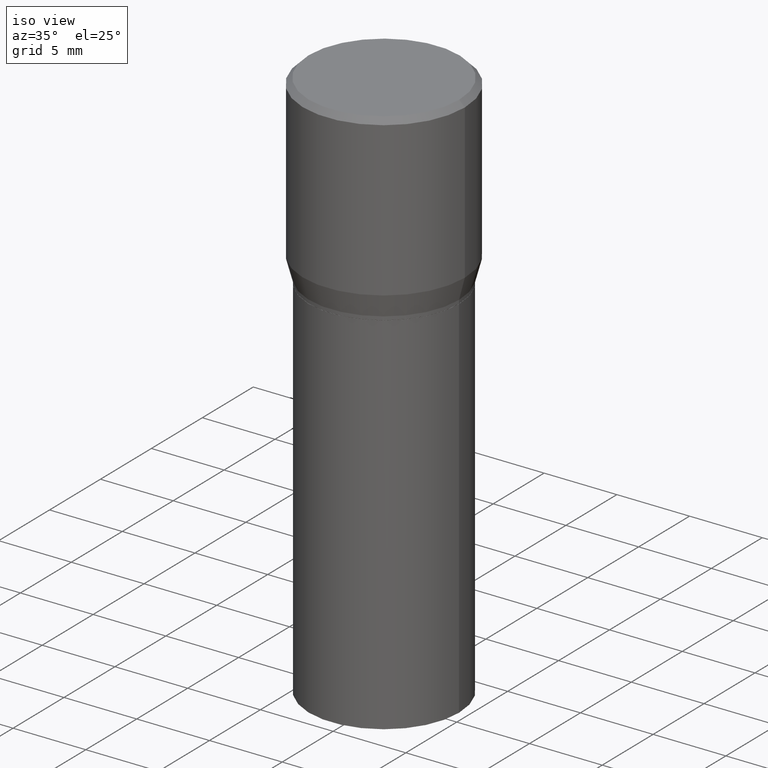
[diagram: clean part render]
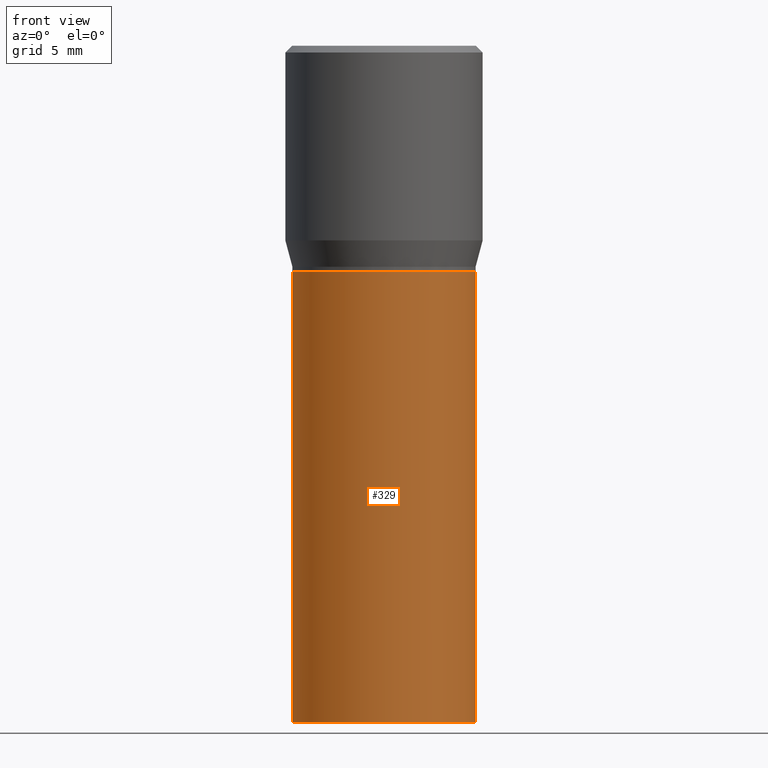
[diagram: tour spotlight — one face highlighted and labeled with its STEP entity id]
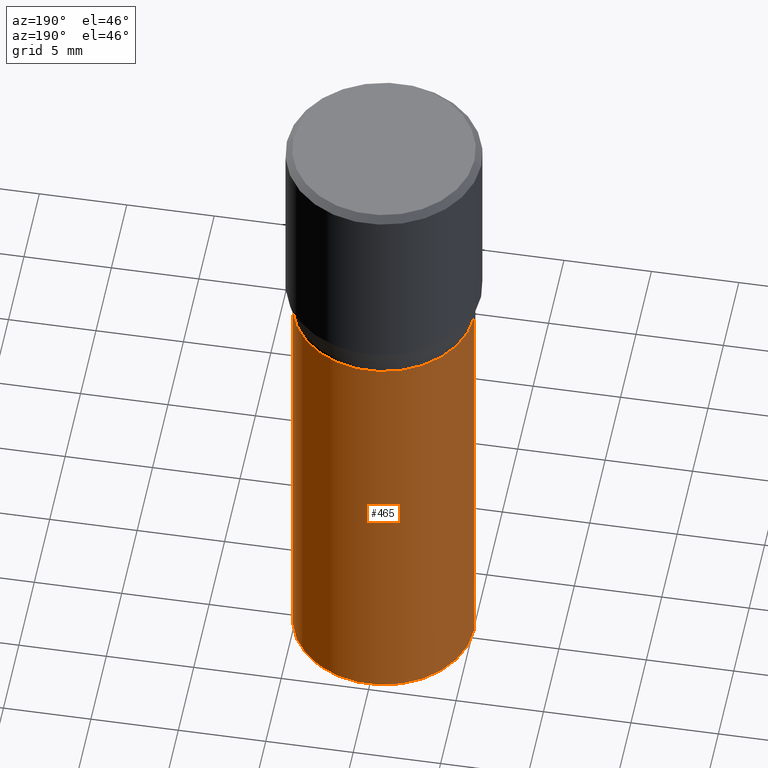
[diagram: tour spotlight — one face highlighted and labeled with its STEP entity id]
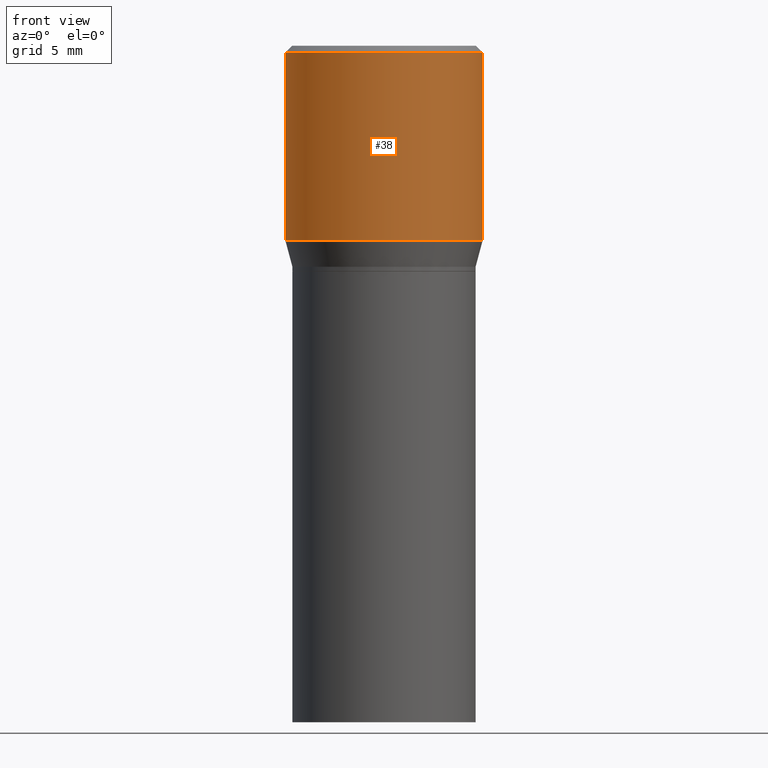
[diagram: tour spotlight — one face highlighted and labeled with its STEP entity id]
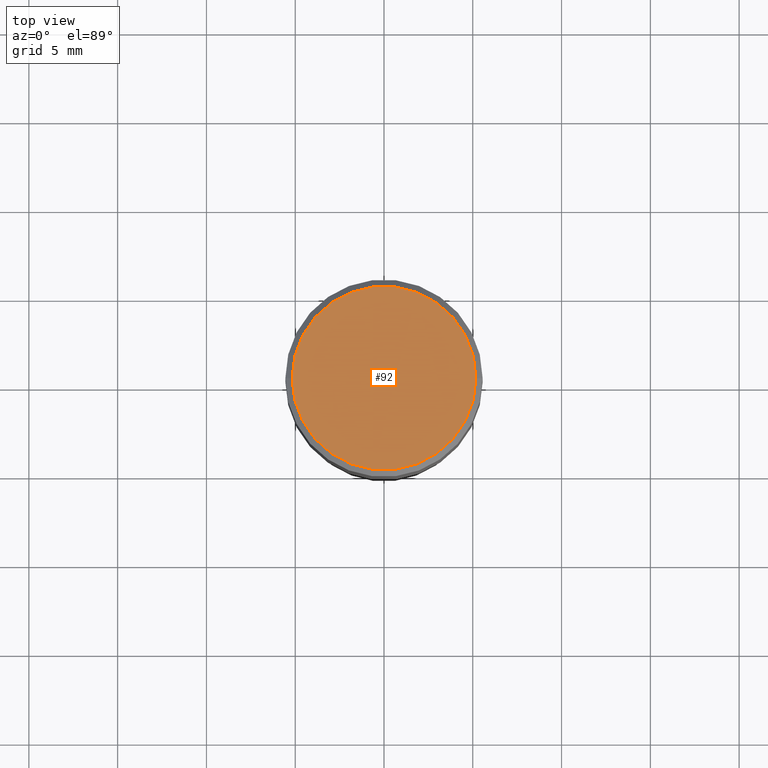
[diagram: tour spotlight — one face highlighted and labeled with its STEP entity id]
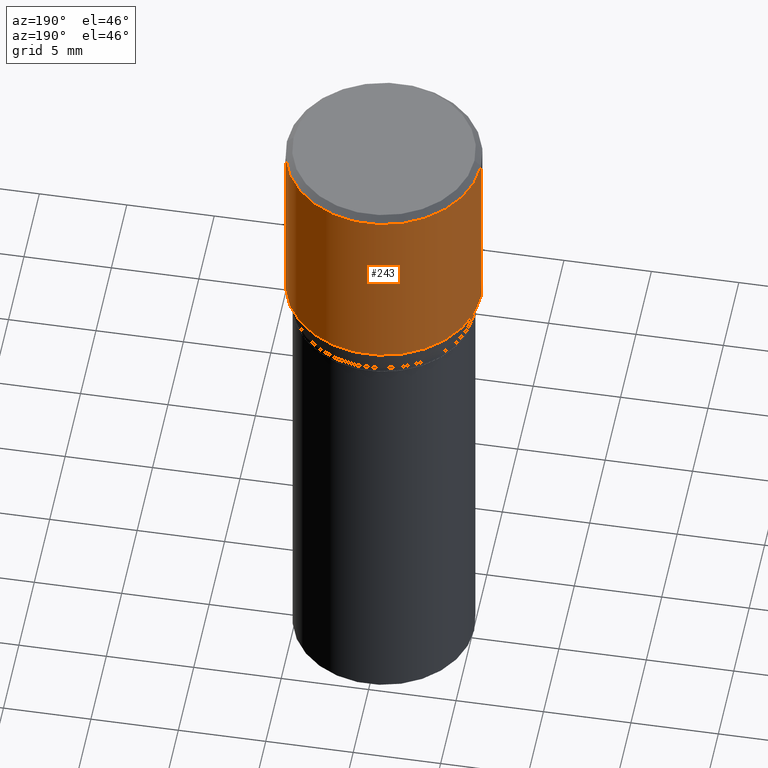
[diagram: tour spotlight — one face highlighted and labeled with its STEP entity id]
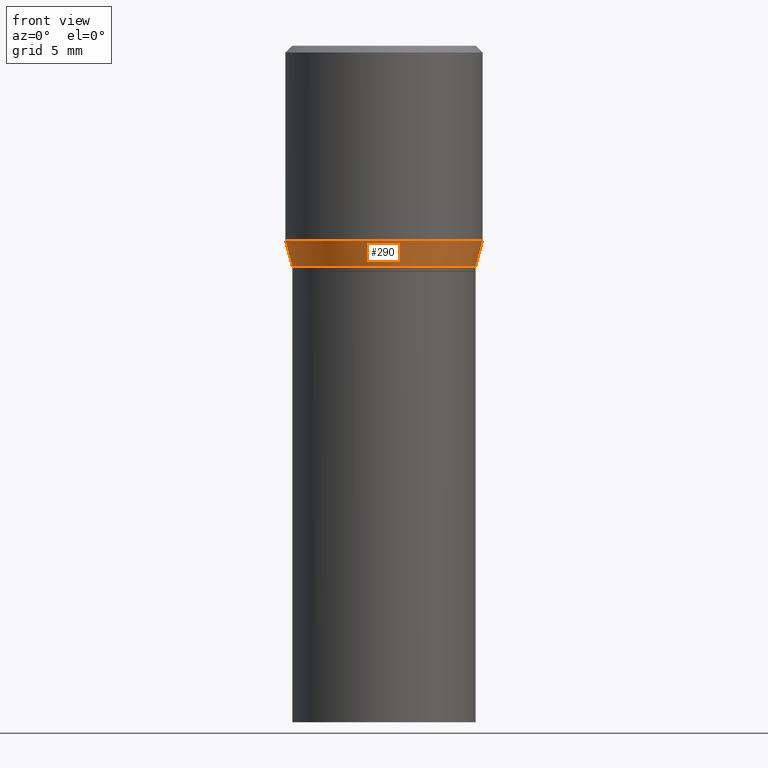
[diagram: tour spotlight — one face highlighted and labeled with its STEP entity id]
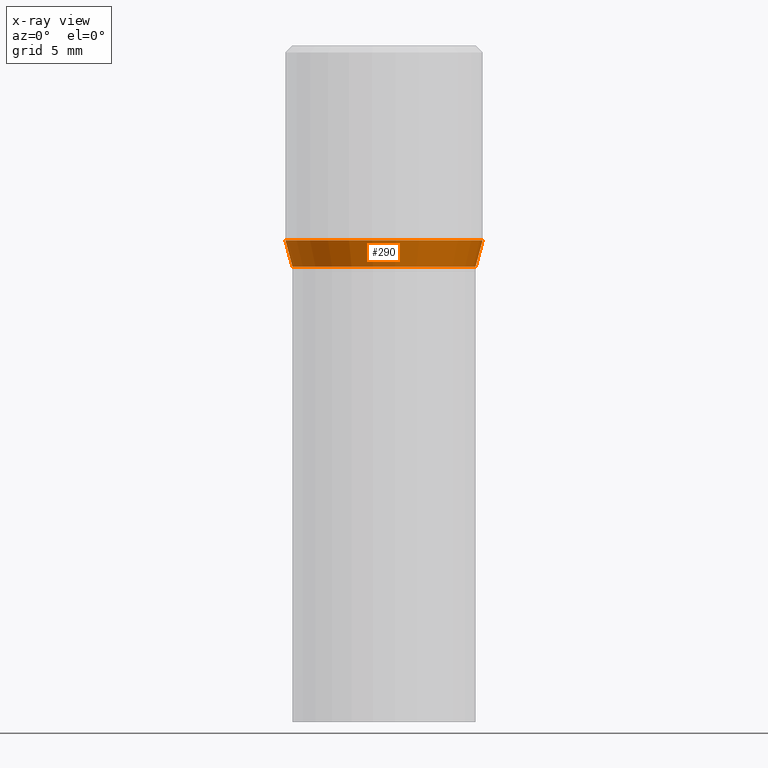
[diagram: x-ray of the same camera — body ghosted, this tour face saturated]
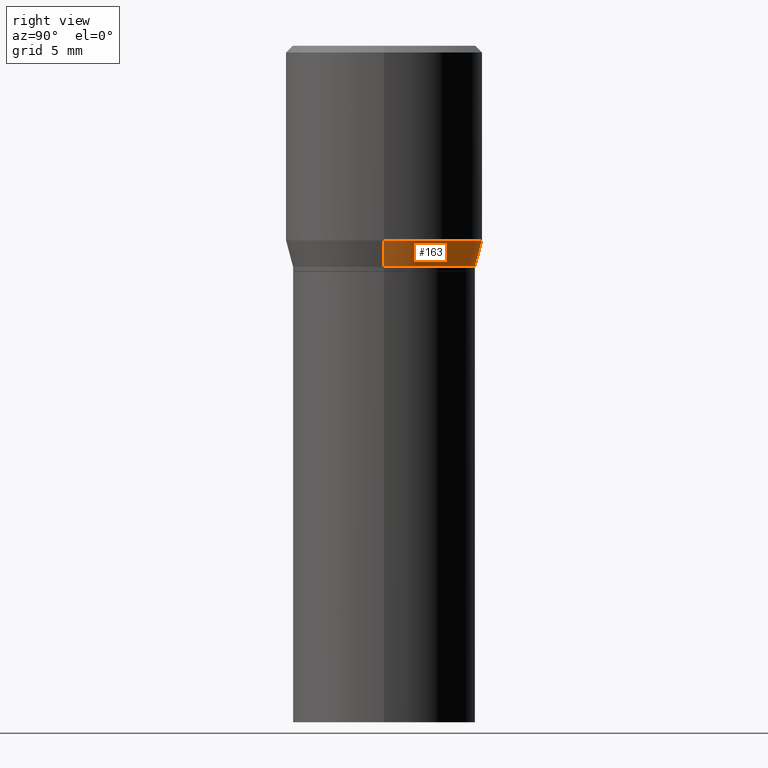
[diagram: tour spotlight — one face highlighted and labeled with its STEP entity id]
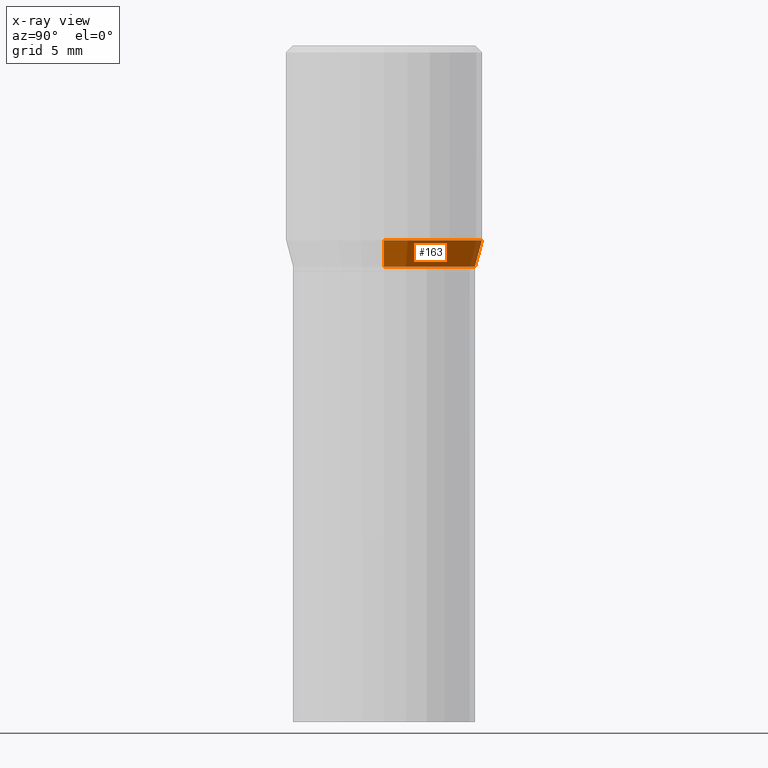
[diagram: x-ray of the same camera — body ghosted, this tour face saturated]
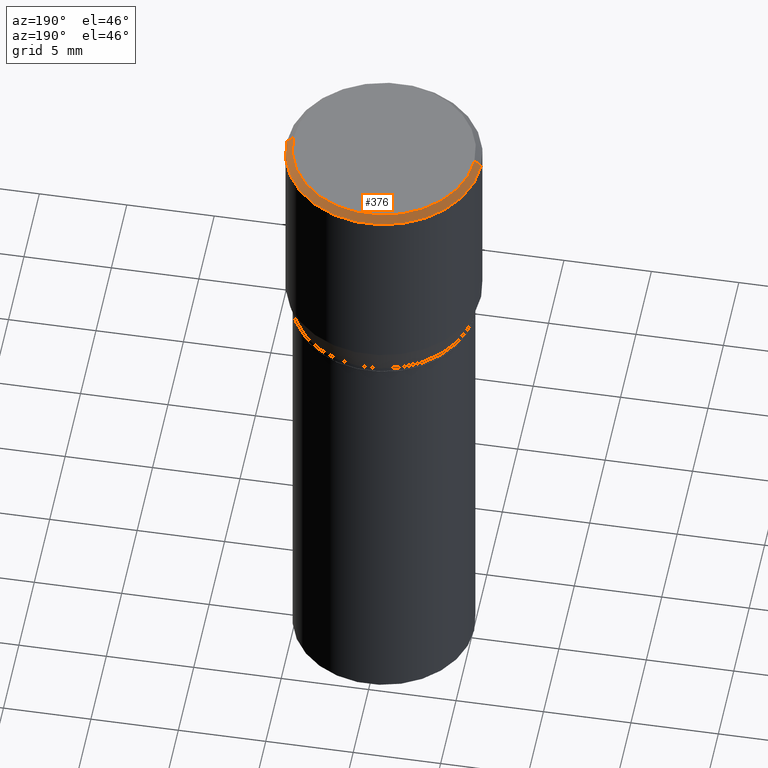
[diagram: tour spotlight — one face highlighted and labeled with its STEP entity id]
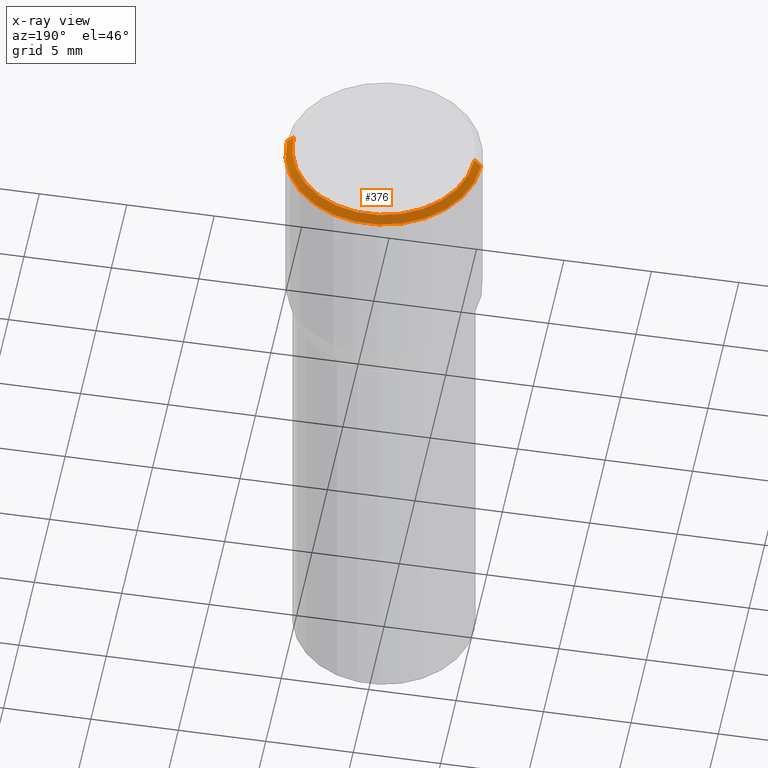
[diagram: x-ray of the same camera — body ghosted, this tour face saturated]
A machine part: a face-by-face anatomy tour. The part has 16 B-rep faces; the first image is the clean iso view, then the 8 largest visible faces are spotlighted one at a time (largest first), each with its STEP entity span.

Face 1 — front view, entity #329. In plain terms, the highlighted cylindrical surface (partial cylindrical patch) has radius 5.1587 mm, axis along (-0, 0, 1).
Definition (entity closure, byte-faithful):
#15 = CIRCLE ( 'NONE', #332, 0.2031000000000000028 ) ;
#35 = AXIS2_PLACEMENT_3D ( 'NONE', #206, #203, #275 ) ;
#54 = CARTESIAN_POINT ( 'NONE',  ( 0.2031000000000000028, -3.163980389259653764E-15, -0.5000000000000001110 ) ) ;
#61 = VERTEX_POINT ( 'NONE', #193 ) ;
#64 = VECTOR ( 'NONE', #448, 39.37007874015748143 ) ;
#65 = FACE_OUTER_BOUND ( 'NONE', #200, .T. ) ;
#81 = CARTESIAN_POINT ( 'NONE',  ( -0.2031000000000000028, 1.443112296328763497E-15, -9.990357168307714203E-30 ) ) ;
#87 = DIRECTION ( 'NONE',  ( -2.445468806185136877E-29, 3.491481338843145188E-15, 1.000000000000000000 ) ) ;
#88 = ORIENTED_EDGE ( 'NONE', *, *, #245, .T. ) ;
#94 = CARTESIAN_POINT ( 'NONE',  ( 0.000000000000000000, 0.000000000000000000, 0.000000000000000000 ) ) ;
#99 = EDGE_CURVE ( 'NONE', #61, #436, #157, .T. ) ;
#102 = CARTESIAN_POINT ( 'NONE',  ( 0.2031000000000000028, -1.418239719838080775E-15, 9.903515031641546145E-30 ) ) ;
#115 = VECTOR ( 'NONE', #87, 39.37007874015748143 ) ;
#142 = CARTESIAN_POINT ( 'NONE',  ( -0.2031000000000000028, -2.048369042514382480E-15, -0.5000000000000001110 ) ) ;
#151 = VERTEX_POINT ( 'NONE', #54 ) ;
#157 = LINE ( 'NONE', #81, #115 ) ;
#177 = DIRECTION ( 'NONE',  ( 1.000000000000000000, -6.982962677686265922E-15, 0.000000000000000000 ) ) ;
#193 = CARTESIAN_POINT ( 'NONE',  ( -0.2031000000000000028, -2.048369042514382480E-15, -1.500000000000000222 ) ) ;
#195 = DIRECTION ( 'NONE',  ( 1.000000000000000000, -6.982962677686266711E-15, 4.876176775795935793E-29 ) ) ;
#196 = CARTESIAN_POINT ( 'NONE',  ( 0.2031000000000000028, -6.655461728102798952E-15, -1.500000000000000222 ) ) ;
#199 = CIRCLE ( 'NONE', #35, 0.2031000000000000028 ) ;
#200 = EDGE_LOOP ( 'NONE', ( #337, #324, #88, #284 ) ) ;
#203 = DIRECTION ( 'NONE',  ( -2.445468806185136597E-29, 3.491481338843145583E-15, 1.000000000000000000 ) ) ;
#206 = CARTESIAN_POINT ( 'NONE',  ( 3.668203209277704895E-29, -5.237222008264718177E-15, -1.500000000000000222 ) ) ;
#245 = EDGE_CURVE ( 'NONE', #331, #151, #336, .T. ) ;
#273 = DIRECTION ( 'NONE',  ( -2.445468806185136597E-29, 3.491481338843145583E-15, 1.000000000000000000 ) ) ;
#275 = DIRECTION ( 'NONE',  ( 1.000000000000000000, -6.982962677686264344E-15, 0.000000000000000000 ) ) ;
#284 = ORIENTED_EDGE ( 'NONE', *, *, #461, .F. ) ;
#288 = AXIS2_PLACEMENT_3D ( 'NONE', #94, #273, #195 ) ;
#324 = ORIENTED_EDGE ( 'NONE', *, *, #430, .T. ) ;
#329 = ADVANCED_FACE ( 'NONE', ( #65 ), #344, .T. ) ;
#331 = VERTEX_POINT ( 'NONE', #196 ) ;
#332 = AXIS2_PLACEMENT_3D ( 'NONE', #351, #357, #177 ) ;
#336 = LINE ( 'NONE', #102, #64 ) ;
#337 = ORIENTED_EDGE ( 'NONE', *, *, #99, .F. ) ;
#344 = CYLINDRICAL_SURFACE ( 'NONE', #288, 0.2031000000000000028 ) ;
#351 = CARTESIAN_POINT ( 'NONE',  ( 1.222734403092568719E-29, -1.745740669421573186E-15, -0.5000000000000001110 ) ) ;
#357 = DIRECTION ( 'NONE',  ( -2.445468806185136597E-29, 3.491481338843145583E-15, 1.000000000000000000 ) ) ;
#430 = EDGE_CURVE ( 'NONE', #61, #331, #199, .T. ) ;
#436 = VERTEX_POINT ( 'NONE', #142 ) ;
#448 = DIRECTION ( 'NONE',  ( -2.445468806185136877E-29, 3.491481338843145188E-15, 1.000000000000000000 ) ) ;
#461 = EDGE_CURVE ( 'NONE', #436, #151, #15, .T. ) ;

Face 2 — auxiliary view, entity #465. In plain terms, the highlighted cylindrical surface (partial cylindrical patch) has radius 5.1587 mm, axis along (-0, 0, 1).
Definition (entity closure, byte-faithful):
#33 = EDGE_CURVE ( 'NONE', #151, #436, #355, .T. ) ;
#45 = ORIENTED_EDGE ( 'NONE', *, *, #99, .T. ) ;
#54 = CARTESIAN_POINT ( 'NONE',  ( 0.2031000000000000028, -3.163980389259653764E-15, -0.5000000000000001110 ) ) ;
#61 = VERTEX_POINT ( 'NONE', #193 ) ;
#64 = VECTOR ( 'NONE', #448, 39.37007874015748143 ) ;
#71 = DIRECTION ( 'NONE',  ( -2.445468806185136597E-29, 3.491481338843145583E-15, 1.000000000000000000 ) ) ;
#81 = CARTESIAN_POINT ( 'NONE',  ( -0.2031000000000000028, 1.443112296328763497E-15, -9.990357168307714203E-30 ) ) ;
#87 = DIRECTION ( 'NONE',  ( -2.445468806185136877E-29, 3.491481338843145188E-15, 1.000000000000000000 ) ) ;
#95 = DIRECTION ( 'NONE',  ( -2.445468806185136597E-29, 3.491481338843145583E-15, 1.000000000000000000 ) ) ;
#99 = EDGE_CURVE ( 'NONE', #61, #436, #157, .T. ) ;
#102 = CARTESIAN_POINT ( 'NONE',  ( 0.2031000000000000028, -1.418239719838080775E-15, 9.903515031641546145E-30 ) ) ;
#115 = VECTOR ( 'NONE', #87, 39.37007874015748143 ) ;
#127 = DIRECTION ( 'NONE',  ( -2.445468806185136597E-29, 3.491481338843145583E-15, 1.000000000000000000 ) ) ;
#138 = CARTESIAN_POINT ( 'NONE',  ( 0.000000000000000000, 0.000000000000000000, 0.000000000000000000 ) ) ;
#142 = CARTESIAN_POINT ( 'NONE',  ( -0.2031000000000000028, -2.048369042514382480E-15, -0.5000000000000001110 ) ) ;
#151 = VERTEX_POINT ( 'NONE', #54 ) ;
#154 = AXIS2_PLACEMENT_3D ( 'NONE', #452, #127, #232 ) ;
#157 = LINE ( 'NONE', #81, #115 ) ;
#193 = CARTESIAN_POINT ( 'NONE',  ( -0.2031000000000000028, -2.048369042514382480E-15, -1.500000000000000222 ) ) ;
#196 = CARTESIAN_POINT ( 'NONE',  ( 0.2031000000000000028, -6.655461728102798952E-15, -1.500000000000000222 ) ) ;
#214 = ORIENTED_EDGE ( 'NONE', *, *, #245, .F. ) ;
#232 = DIRECTION ( 'NONE',  ( 1.000000000000000000, -6.982962677686264344E-15, 0.000000000000000000 ) ) ;
#233 = DIRECTION ( 'NONE',  ( 1.000000000000000000, -6.982962677686265922E-15, 0.000000000000000000 ) ) ;
#245 = EDGE_CURVE ( 'NONE', #331, #151, #336, .T. ) ;
#267 = CARTESIAN_POINT ( 'NONE',  ( 1.222734403092568719E-29, -1.745740669421573186E-15, -0.5000000000000001110 ) ) ;
#331 = VERTEX_POINT ( 'NONE', #196 ) ;
#336 = LINE ( 'NONE', #102, #64 ) ;
#346 = CYLINDRICAL_SURFACE ( 'NONE', #457, 0.2031000000000000028 ) ;
#355 = CIRCLE ( 'NONE', #394, 0.2031000000000000028 ) ;
#369 = ORIENTED_EDGE ( 'NONE', *, *, #396, .T. ) ;
#389 = FACE_OUTER_BOUND ( 'NONE', #442, .T. ) ;
#393 = CIRCLE ( 'NONE', #154, 0.2031000000000000028 ) ;
#394 = AXIS2_PLACEMENT_3D ( 'NONE', #267, #95, #233 ) ;
#396 = EDGE_CURVE ( 'NONE', #331, #61, #393, .T. ) ;
#425 = DIRECTION ( 'NONE',  ( 1.000000000000000000, -6.982962677686266711E-15, 4.876176775795935793E-29 ) ) ;
#436 = VERTEX_POINT ( 'NONE', #142 ) ;
#442 = EDGE_LOOP ( 'NONE', ( #369, #45, #455, #214 ) ) ;
#448 = DIRECTION ( 'NONE',  ( -2.445468806185136877E-29, 3.491481338843145188E-15, 1.000000000000000000 ) ) ;
#452 = CARTESIAN_POINT ( 'NONE',  ( 3.668203209277704895E-29, -5.237222008264718177E-15, -1.500000000000000222 ) ) ;
#455 = ORIENTED_EDGE ( 'NONE', *, *, #33, .F. ) ;
#457 = AXIS2_PLACEMENT_3D ( 'NONE', #138, #71, #425 ) ;
#465 = ADVANCED_FACE ( 'NONE', ( #389 ), #346, .T. ) ;

Face 3 — front view, entity #38. In plain terms, the highlighted cylindrical surface (partial cylindrical patch) has radius 5.5562 mm, axis along (-0, 0, 1).
Definition (entity closure, byte-faithful):
#5 = DIRECTION ( 'NONE',  ( 1.000000000000000000, -6.982962677686266711E-15, 0.000000000000000000 ) ) ;
#13 = ORIENTED_EDGE ( 'NONE', *, *, #173, .F. ) ;
#22 = DIRECTION ( 'NONE',  ( -2.445468806185136877E-29, 3.491481338843145188E-15, 1.000000000000000000 ) ) ;
#23 = EDGE_LOOP ( 'NONE', ( #122, #215, #161, #13 ) ) ;
#38 = ADVANCED_FACE ( 'NONE', ( #265 ), #414, .T. ) ;
#50 = DIRECTION ( 'NONE',  ( -2.445468806185136597E-29, 3.491481338843145583E-15, 1.000000000000000000 ) ) ;
#76 = VERTEX_POINT ( 'NONE', #335 ) ;
#93 = CARTESIAN_POINT ( 'NONE',  ( 0.000000000000000000, 0.000000000000000000, 0.000000000000000000 ) ) ;
#100 = DIRECTION ( 'NONE',  ( -2.445468806185136597E-29, 3.491481338843145583E-15, 1.000000000000000000 ) ) ;
#111 = CARTESIAN_POINT ( 'NONE',  ( -0.2187500000000000000, 1.554312234475219157E-15, -1.076017050993260622E-29 ) ) ;
#112 = VERTEX_POINT ( 'NONE', #446 ) ;
#122 = ORIENTED_EDGE ( 'NONE', *, *, #213, .F. ) ;
#131 = DIRECTION ( 'NONE',  ( -2.445468806185136597E-29, 3.491481338843145583E-15, 1.000000000000000000 ) ) ;
#135 = DIRECTION ( 'NONE',  ( 1.000000000000000000, -6.982962677686265133E-15, 0.000000000000000000 ) ) ;
#147 = CARTESIAN_POINT ( 'NONE',  ( -0.2187500000000000000, 4.741191543335144142E-17, -0.4315934048615475138 ) ) ;
#161 = ORIENTED_EDGE ( 'NONE', *, *, #257, .T. ) ;
#173 = EDGE_CURVE ( 'NONE', #76, #189, #271, .T. ) ;
#184 = VERTEX_POINT ( 'NONE', #147 ) ;
#186 = LINE ( 'NONE', #111, #451 ) ;
#189 = VERTEX_POINT ( 'NONE', #281 ) ;
#213 = EDGE_CURVE ( 'NONE', #184, #76, #186, .T. ) ;
#215 = ORIENTED_EDGE ( 'NONE', *, *, #247, .T. ) ;
#228 = AXIS2_PLACEMENT_3D ( 'NONE', #454, #100, #135 ) ;
#247 = EDGE_CURVE ( 'NONE', #184, #112, #307, .T. ) ;
#251 = DIRECTION ( 'NONE',  ( -2.445468806185136877E-29, 3.491481338843145188E-15, 1.000000000000000000 ) ) ;
#256 = CARTESIAN_POINT ( 'NONE',  ( 3.668203209277705088E-31, -5.237222008264718399E-17, -0.01499999999999999944 ) ) ;
#257 = EDGE_CURVE ( 'NONE', #112, #189, #383, .T. ) ;
#265 = FACE_OUTER_BOUND ( 'NONE', #23, .T. ) ;
#271 = CIRCLE ( 'NONE', #314, 0.2187500000000000000 ) ;
#281 = CARTESIAN_POINT ( 'NONE',  ( 0.2187500000000000000, -1.579895305826517922E-15, -0.01499999999999999944 ) ) ;
#307 = CIRCLE ( 'NONE', #228, 0.2187500000000000000 ) ;
#314 = AXIS2_PLACEMENT_3D ( 'NONE', #256, #50, #5 ) ;
#335 = CARTESIAN_POINT ( 'NONE',  ( -0.2187500000000000000, 7.746759649129616577E-16, -0.01499999999999999944 ) ) ;
#383 = LINE ( 'NONE', #424, #411 ) ;
#411 = VECTOR ( 'NONE', #22, 39.37007874015748143 ) ;
#414 = CYLINDRICAL_SURFACE ( 'NONE', #433, 0.2187500000000000000 ) ;
#417 = DIRECTION ( 'NONE',  ( 1.000000000000000000, -6.982962677686266711E-15, 4.876176775795935232E-29 ) ) ;
#424 = CARTESIAN_POINT ( 'NONE',  ( 0.2187500000000000000, -1.527523085743870843E-15, 1.066663669705360885E-29 ) ) ;
#433 = AXIS2_PLACEMENT_3D ( 'NONE', #93, #131, #417 ) ;
#446 = CARTESIAN_POINT ( 'NONE',  ( 0.2187500000000000000, -3.034423404785738170E-15, -0.4315934048615475138 ) ) ;
#451 = VECTOR ( 'NONE', #251, 39.37007874015748143 ) ;
#454 = CARTESIAN_POINT ( 'NONE',  ( 1.055448208544146876E-29, -1.506900319041867721E-15, -0.4315934048615475138 ) ) ;

Face 4 — top view, entity #92. In plain terms, the highlighted planar face has unit normal (0, -0, -1).
Definition (entity closure, byte-faithful):
#3 = EDGE_CURVE ( 'NONE', #121, #364, #36, .T. ) ;
#6 = CIRCLE ( 'NONE', #98, 0.2037499999999999867 ) ;
#9 = DIRECTION ( 'NONE',  ( 1.000000000000000000, -6.982962677686266711E-15, 4.875065411617369217E-29 ) ) ;
#36 = CIRCLE ( 'NONE', #139, 0.2037499999999999867 ) ;
#77 = DIRECTION ( 'NONE',  ( 2.438088387897960049E-29, -3.491481338843145188E-15, -1.000000000000000000 ) ) ;
#92 = ADVANCED_FACE ( 'NONE', ( #120 ), #221, .F. ) ;
#98 = AXIS2_PLACEMENT_3D ( 'NONE', #260, #323, #9 ) ;
#120 = FACE_OUTER_BOUND ( 'NONE', #395, .T. ) ;
#121 = VERTEX_POINT ( 'NONE', #437 ) ;
#128 = DIRECTION ( 'NONE',  ( 1.000000000000000000, -6.982962677686266711E-15, 4.875065411617369217E-29 ) ) ;
#139 = AXIS2_PLACEMENT_3D ( 'NONE', #409, #339, #128 ) ;
#141 = EDGE_CURVE ( 'NONE', #364, #121, #6, .T. ) ;
#192 = DIRECTION ( 'NONE',  ( -1.000000000000000000, 6.982962677686265922E-15, -4.876176775795935793E-29 ) ) ;
#221 = PLANE ( 'NONE',  #309 ) ;
#258 = ORIENTED_EDGE ( 'NONE', *, *, #141, .T. ) ;
#260 = CARTESIAN_POINT ( 'NONE',  ( -2.592568563193567003E-45, 3.701500806376036554E-31, 1.060151966214568974E-16 ) ) ;
#270 = CARTESIAN_POINT ( 'NONE',  ( 0.2037499999999999867, -1.475466312070559275E-15, 1.060151966214670170E-16 ) ) ;
#293 = CARTESIAN_POINT ( 'NONE',  ( 1.422778645578576487E-15, 0.2037499999999999867, -6.583817244785623957E-16 ) ) ;
#309 = AXIS2_PLACEMENT_3D ( 'NONE', #293, #77, #192 ) ;
#321 = ORIENTED_EDGE ( 'NONE', *, *, #3, .T. ) ;
#323 = DIRECTION ( 'NONE',  ( -2.445468806185136597E-29, 3.491481338843145583E-15, 1.000000000000000000 ) ) ;
#339 = DIRECTION ( 'NONE',  ( -2.445468806185136597E-29, 3.491481338843145583E-15, 1.000000000000000000 ) ) ;
#364 = VERTEX_POINT ( 'NONE', #270 ) ;
#395 = EDGE_LOOP ( 'NONE', ( #321, #258 ) ) ;
#409 = CARTESIAN_POINT ( 'NONE',  ( -2.592568563193567003E-45, 3.701500806376036554E-31, 1.060151966214568974E-16 ) ) ;
#437 = CARTESIAN_POINT ( 'NONE',  ( -0.2037499999999999867, 1.448964755619900421E-15, 1.060151966214468518E-16 ) ) ;

Face 5 — auxiliary view, entity #243. In plain terms, the highlighted cylindrical surface (partial cylindrical patch) has radius 5.5562 mm, axis along (-0, 0, 1).
Definition (entity closure, byte-faithful):
#14 = DIRECTION ( 'NONE',  ( 1.000000000000000000, -6.982962677686266711E-15, 4.876176775795935232E-29 ) ) ;
#22 = DIRECTION ( 'NONE',  ( -2.445468806185136877E-29, 3.491481338843145188E-15, 1.000000000000000000 ) ) ;
#34 = DIRECTION ( 'NONE',  ( 1.000000000000000000, -6.982962677686266711E-15, 0.000000000000000000 ) ) ;
#75 = ORIENTED_EDGE ( 'NONE', *, *, #213, .T. ) ;
#76 = VERTEX_POINT ( 'NONE', #335 ) ;
#79 = EDGE_LOOP ( 'NONE', ( #124, #75, #82, #359 ) ) ;
#82 = ORIENTED_EDGE ( 'NONE', *, *, #429, .F. ) ;
#96 = CARTESIAN_POINT ( 'NONE',  ( 1.055448208544146876E-29, -1.506900319041867721E-15, -0.4315934048615475138 ) ) ;
#104 = CARTESIAN_POINT ( 'NONE',  ( 3.668203209277705088E-31, -5.237222008264718399E-17, -0.01499999999999999944 ) ) ;
#111 = CARTESIAN_POINT ( 'NONE',  ( -0.2187500000000000000, 1.554312234475219157E-15, -1.076017050993260622E-29 ) ) ;
#112 = VERTEX_POINT ( 'NONE', #446 ) ;
#114 = CARTESIAN_POINT ( 'NONE',  ( 0.000000000000000000, 0.000000000000000000, 0.000000000000000000 ) ) ;
#124 = ORIENTED_EDGE ( 'NONE', *, *, #308, .T. ) ;
#136 = AXIS2_PLACEMENT_3D ( 'NONE', #114, #404, #14 ) ;
#147 = CARTESIAN_POINT ( 'NONE',  ( -0.2187500000000000000, 4.741191543335144142E-17, -0.4315934048615475138 ) ) ;
#170 = DIRECTION ( 'NONE',  ( -2.445468806185136597E-29, 3.491481338843145583E-15, 1.000000000000000000 ) ) ;
#184 = VERTEX_POINT ( 'NONE', #147 ) ;
#185 = CIRCLE ( 'NONE', #239, 0.2187500000000000000 ) ;
#186 = LINE ( 'NONE', #111, #451 ) ;
#189 = VERTEX_POINT ( 'NONE', #281 ) ;
#190 = FACE_OUTER_BOUND ( 'NONE', #79, .T. ) ;
#213 = EDGE_CURVE ( 'NONE', #184, #76, #186, .T. ) ;
#238 = DIRECTION ( 'NONE',  ( -2.445468806185136597E-29, 3.491481338843145583E-15, 1.000000000000000000 ) ) ;
#239 = AXIS2_PLACEMENT_3D ( 'NONE', #96, #170, #412 ) ;
#243 = ADVANCED_FACE ( 'NONE', ( #190 ), #440, .T. ) ;
#251 = DIRECTION ( 'NONE',  ( -2.445468806185136877E-29, 3.491481338843145188E-15, 1.000000000000000000 ) ) ;
#257 = EDGE_CURVE ( 'NONE', #112, #189, #383, .T. ) ;
#281 = CARTESIAN_POINT ( 'NONE',  ( 0.2187500000000000000, -1.579895305826517922E-15, -0.01499999999999999944 ) ) ;
#308 = EDGE_CURVE ( 'NONE', #112, #184, #185, .T. ) ;
#335 = CARTESIAN_POINT ( 'NONE',  ( -0.2187500000000000000, 7.746759649129616577E-16, -0.01499999999999999944 ) ) ;
#340 = CIRCLE ( 'NONE', #402, 0.2187500000000000000 ) ;
#359 = ORIENTED_EDGE ( 'NONE', *, *, #257, .F. ) ;
#383 = LINE ( 'NONE', #424, #411 ) ;
#402 = AXIS2_PLACEMENT_3D ( 'NONE', #104, #238, #34 ) ;
#404 = DIRECTION ( 'NONE',  ( -2.445468806185136597E-29, 3.491481338843145583E-15, 1.000000000000000000 ) ) ;
#411 = VECTOR ( 'NONE', #22, 39.37007874015748143 ) ;
#412 = DIRECTION ( 'NONE',  ( 1.000000000000000000, -6.982962677686265133E-15, 0.000000000000000000 ) ) ;
#424 = CARTESIAN_POINT ( 'NONE',  ( 0.2187500000000000000, -1.527523085743870843E-15, 1.066663669705360885E-29 ) ) ;
#429 = EDGE_CURVE ( 'NONE', #189, #76, #340, .T. ) ;
#440 = CYLINDRICAL_SURFACE ( 'NONE', #136, 0.2187500000000000000 ) ;
#446 = CARTESIAN_POINT ( 'NONE',  ( 0.2187500000000000000, -3.034423404785738170E-15, -0.4315934048615475138 ) ) ;
#451 = VECTOR ( 'NONE', #251, 39.37007874015748143 ) ;

Face 6 — front view, entity #290. An x-ray twin of the same camera follows (body ghosted, this face saturated) — the face is partly hidden behind the body. In plain terms, the highlighted conical surface has half-angle 15 deg.
Definition (entity closure, byte-faithful):
#16 = EDGE_CURVE ( 'NONE', #318, #358, #466, .T. ) ;
#28 = FACE_OUTER_BOUND ( 'NONE', #405, .T. ) ;
#44 = VECTOR ( 'NONE', #91, 39.37007874015748854 ) ;
#49 = ORIENTED_EDGE ( 'NONE', *, *, #247, .F. ) ;
#91 = DIRECTION ( 'NONE',  ( 0.2588190451025211836, 1.565188264969622559E-15, 0.9659258262890679791 ) ) ;
#97 = DIRECTION ( 'NONE',  ( 1.000000000000000000, -6.982962677686265922E-15, 0.000000000000000000 ) ) ;
#100 = DIRECTION ( 'NONE',  ( -2.445468806185136597E-29, 3.491481338843145583E-15, 1.000000000000000000 ) ) ;
#108 = ORIENTED_EDGE ( 'NONE', *, *, #126, .F. ) ;
#112 = VERTEX_POINT ( 'NONE', #446 ) ;
#118 = DIRECTION ( 'NONE',  ( -0.2588190451025211836, 5.211531920934547886E-15, 0.9659258262890679791 ) ) ;
#123 = CARTESIAN_POINT ( 'NONE',  ( 0.2031000000000000583, -3.129065575871222509E-15, -0.4900000000000001021 ) ) ;
#126 = EDGE_CURVE ( 'NONE', #318, #184, #399, .T. ) ;
#135 = DIRECTION ( 'NONE',  ( 1.000000000000000000, -6.982962677686265133E-15, 0.000000000000000000 ) ) ;
#143 = ORIENTED_EDGE ( 'NONE', *, *, #361, .T. ) ;
#147 = CARTESIAN_POINT ( 'NONE',  ( -0.2187500000000000000, 4.741191543335144142E-17, -0.4315934048615475138 ) ) ;
#160 = CARTESIAN_POINT ( 'NONE',  ( 0.2031000000000000583, -3.129065575871222509E-15, -0.4900000000000001021 ) ) ;
#168 = DIRECTION ( 'NONE',  ( 1.000000000000000000, -6.982962677686265922E-15, 0.000000000000000000 ) ) ;
#184 = VERTEX_POINT ( 'NONE', #147 ) ;
#224 = CARTESIAN_POINT ( 'NONE',  ( -0.2031000000000000583, -2.677135597043777931E-16, -0.4900000000000001021 ) ) ;
#228 = AXIS2_PLACEMENT_3D ( 'NONE', #454, #100, #135 ) ;
#230 = AXIS2_PLACEMENT_3D ( 'NONE', #450, #420, #97 ) ;
#236 = ORIENTED_EDGE ( 'NONE', *, *, #16, .T. ) ;
#237 = LINE ( 'NONE', #123, #44 ) ;
#247 = EDGE_CURVE ( 'NONE', #184, #112, #307, .T. ) ;
#290 = ADVANCED_FACE ( 'NONE', ( #28 ), #380, .T. ) ;
#307 = CIRCLE ( 'NONE', #228, 0.2187500000000000000 ) ;
#318 = VERTEX_POINT ( 'NONE', #373 ) ;
#341 = CARTESIAN_POINT ( 'NONE',  ( 1.198279715030717173E-29, -1.710825856033141537E-15, -0.4900000000000001021 ) ) ;
#358 = VERTEX_POINT ( 'NONE', #160 ) ;
#361 = EDGE_CURVE ( 'NONE', #358, #112, #237, .T. ) ;
#373 = CARTESIAN_POINT ( 'NONE',  ( -0.2031000000000000583, -1.101508221355132898E-16, -0.4900000000000001021 ) ) ;
#380 = CONICAL_SURFACE ( 'NONE', #441, 0.2031000000000000583, 0.2617993877991499074 ) ;
#399 = LINE ( 'NONE', #224, #463 ) ;
#405 = EDGE_LOOP ( 'NONE', ( #108, #236, #143, #49 ) ) ;
#420 = DIRECTION ( 'NONE',  ( -2.445468806185136597E-29, 3.491481338843145583E-15, 1.000000000000000000 ) ) ;
#441 = AXIS2_PLACEMENT_3D ( 'NONE', #341, #458, #168 ) ;
#446 = CARTESIAN_POINT ( 'NONE',  ( 0.2187500000000000000, -3.034423404785738170E-15, -0.4315934048615475138 ) ) ;
#450 = CARTESIAN_POINT ( 'NONE',  ( 1.198279715030717173E-29, -1.710825856033141537E-15, -0.4900000000000001021 ) ) ;
#454 = CARTESIAN_POINT ( 'NONE',  ( 1.055448208544146876E-29, -1.506900319041867721E-15, -0.4315934048615475138 ) ) ;
#458 = DIRECTION ( 'NONE',  ( -2.445468806185136597E-29, 3.491481338843145583E-15, 1.000000000000000000 ) ) ;
#463 = VECTOR ( 'NONE', #118, 39.37007874015748854 ) ;
#466 = CIRCLE ( 'NONE', #230, 0.2031000000000000583 ) ;

Face 7 — right view, entity #163. An x-ray twin of the same camera follows (body ghosted, this face saturated) — the face is partly hidden behind the body. In plain terms, the highlighted conical surface has half-angle 15 deg.
Definition (entity closure, byte-faithful):
#25 = ORIENTED_EDGE ( 'NONE', *, *, #308, .F. ) ;
#44 = VECTOR ( 'NONE', #91, 39.37007874015748854 ) ;
#62 = ORIENTED_EDGE ( 'NONE', *, *, #208, .T. ) ;
#89 = CIRCLE ( 'NONE', #264, 0.2031000000000000583 ) ;
#91 = DIRECTION ( 'NONE',  ( 0.2588190451025211836, 1.565188264969622559E-15, 0.9659258262890679791 ) ) ;
#96 = CARTESIAN_POINT ( 'NONE',  ( 1.055448208544146876E-29, -1.506900319041867721E-15, -0.4315934048615475138 ) ) ;
#109 = DIRECTION ( 'NONE',  ( 1.000000000000000000, -6.982962677686265922E-15, 0.000000000000000000 ) ) ;
#112 = VERTEX_POINT ( 'NONE', #446 ) ;
#118 = DIRECTION ( 'NONE',  ( -0.2588190451025211836, 5.211531920934547886E-15, 0.9659258262890679791 ) ) ;
#123 = CARTESIAN_POINT ( 'NONE',  ( 0.2031000000000000583, -3.129065575871222509E-15, -0.4900000000000001021 ) ) ;
#126 = EDGE_CURVE ( 'NONE', #318, #184, #399, .T. ) ;
#147 = CARTESIAN_POINT ( 'NONE',  ( -0.2187500000000000000, 4.741191543335144142E-17, -0.4315934048615475138 ) ) ;
#160 = CARTESIAN_POINT ( 'NONE',  ( 0.2031000000000000583, -3.129065575871222509E-15, -0.4900000000000001021 ) ) ;
#163 = ADVANCED_FACE ( 'NONE', ( #216 ), #212, .T. ) ;
#170 = DIRECTION ( 'NONE',  ( -2.445468806185136597E-29, 3.491481338843145583E-15, 1.000000000000000000 ) ) ;
#174 = AXIS2_PLACEMENT_3D ( 'NONE', #259, #368, #183 ) ;
#183 = DIRECTION ( 'NONE',  ( 1.000000000000000000, -6.982962677686265922E-15, 0.000000000000000000 ) ) ;
#184 = VERTEX_POINT ( 'NONE', #147 ) ;
#185 = CIRCLE ( 'NONE', #239, 0.2187500000000000000 ) ;
#208 = EDGE_CURVE ( 'NONE', #358, #318, #89, .T. ) ;
#212 = CONICAL_SURFACE ( 'NONE', #174, 0.2031000000000000583, 0.2617993877991499074 ) ;
#216 = FACE_OUTER_BOUND ( 'NONE', #217, .T. ) ;
#217 = EDGE_LOOP ( 'NONE', ( #62, #447, #25, #294 ) ) ;
#224 = CARTESIAN_POINT ( 'NONE',  ( -0.2031000000000000583, -2.677135597043777931E-16, -0.4900000000000001021 ) ) ;
#237 = LINE ( 'NONE', #123, #44 ) ;
#239 = AXIS2_PLACEMENT_3D ( 'NONE', #96, #170, #412 ) ;
#259 = CARTESIAN_POINT ( 'NONE',  ( 1.198279715030717173E-29, -1.710825856033141537E-15, -0.4900000000000001021 ) ) ;
#264 = AXIS2_PLACEMENT_3D ( 'NONE', #435, #370, #109 ) ;
#294 = ORIENTED_EDGE ( 'NONE', *, *, #361, .F. ) ;
#308 = EDGE_CURVE ( 'NONE', #112, #184, #185, .T. ) ;
#318 = VERTEX_POINT ( 'NONE', #373 ) ;
#358 = VERTEX_POINT ( 'NONE', #160 ) ;
#361 = EDGE_CURVE ( 'NONE', #358, #112, #237, .T. ) ;
#368 = DIRECTION ( 'NONE',  ( -2.445468806185136597E-29, 3.491481338843145583E-15, 1.000000000000000000 ) ) ;
#370 = DIRECTION ( 'NONE',  ( -2.445468806185136597E-29, 3.491481338843145583E-15, 1.000000000000000000 ) ) ;
#373 = CARTESIAN_POINT ( 'NONE',  ( -0.2031000000000000583, -1.101508221355132898E-16, -0.4900000000000001021 ) ) ;
#399 = LINE ( 'NONE', #224, #463 ) ;
#412 = DIRECTION ( 'NONE',  ( 1.000000000000000000, -6.982962677686265133E-15, 0.000000000000000000 ) ) ;
#435 = CARTESIAN_POINT ( 'NONE',  ( 1.198279715030717173E-29, -1.710825856033141537E-15, -0.4900000000000001021 ) ) ;
#446 = CARTESIAN_POINT ( 'NONE',  ( 0.2187500000000000000, -3.034423404785738170E-15, -0.4315934048615475138 ) ) ;
#447 = ORIENTED_EDGE ( 'NONE', *, *, #126, .T. ) ;
#463 = VECTOR ( 'NONE', #118, 39.37007874015748854 ) ;

Face 8 — auxiliary view, entity #376. An x-ray twin of the same camera follows (body ghosted, this face saturated) — the face is partly hidden behind the body. In plain terms, the highlighted conical surface has half-angle 45 deg.
Definition (entity closure, byte-faithful):
#6 = CIRCLE ( 'NONE', #98, 0.2037499999999999867 ) ;
#9 = DIRECTION ( 'NONE',  ( 1.000000000000000000, -6.982962677686266711E-15, 4.875065411617369217E-29 ) ) ;
#12 = LINE ( 'NONE', #150, #101 ) ;
#30 = ORIENTED_EDGE ( 'NONE', *, *, #141, .F. ) ;
#34 = DIRECTION ( 'NONE',  ( 1.000000000000000000, -6.982962677686266711E-15, 0.000000000000000000 ) ) ;
#69 = VECTOR ( 'NONE', #289, 39.37007874015748143 ) ;
#76 = VERTEX_POINT ( 'NONE', #335 ) ;
#83 = CARTESIAN_POINT ( 'NONE',  ( -0.2187500000000000000, 1.475150865661223567E-15, -0.01499999999999999944 ) ) ;
#98 = AXIS2_PLACEMENT_3D ( 'NONE', #260, #323, #9 ) ;
#101 = VECTOR ( 'NONE', #285, 39.37007874015748143 ) ;
#104 = CARTESIAN_POINT ( 'NONE',  ( 3.668203209277705088E-31, -5.237222008264718399E-17, -0.01499999999999999944 ) ) ;
#121 = VERTEX_POINT ( 'NONE', #437 ) ;
#130 = CARTESIAN_POINT ( 'NONE',  ( 3.668203209277705088E-31, -5.237222008264718399E-17, -0.01499999999999999944 ) ) ;
#141 = EDGE_CURVE ( 'NONE', #364, #121, #6, .T. ) ;
#150 = CARTESIAN_POINT ( 'NONE',  ( 0.2187500000000000000, -1.553106157095169608E-15, -0.01499999999999999944 ) ) ;
#188 = LINE ( 'NONE', #83, #69 ) ;
#189 = VERTEX_POINT ( 'NONE', #281 ) ;
#194 = EDGE_CURVE ( 'NONE', #121, #76, #188, .T. ) ;
#238 = DIRECTION ( 'NONE',  ( -2.445468806185136597E-29, 3.491481338843145583E-15, 1.000000000000000000 ) ) ;
#241 = EDGE_CURVE ( 'NONE', #364, #189, #12, .T. ) ;
#248 = EDGE_LOOP ( 'NONE', ( #30, #438, #287, #261 ) ) ;
#254 = CONICAL_SURFACE ( 'NONE', #298, 0.2187500000000000000, 0.7853981633974450594 ) ;
#260 = CARTESIAN_POINT ( 'NONE',  ( -2.592568563193567003E-45, 3.701500806376036554E-31, 1.060151966214568974E-16 ) ) ;
#261 = ORIENTED_EDGE ( 'NONE', *, *, #194, .F. ) ;
#263 = DIRECTION ( 'NONE',  ( 2.445468806185136597E-29, -3.491481338843145583E-15, -1.000000000000000000 ) ) ;
#270 = CARTESIAN_POINT ( 'NONE',  ( 0.2037499999999999867, -1.475466312070559275E-15, 1.060151966214670170E-16 ) ) ;
#281 = CARTESIAN_POINT ( 'NONE',  ( 0.2187500000000000000, -1.579895305826517922E-15, -0.01499999999999999944 ) ) ;
#285 = DIRECTION ( 'NONE',  ( 0.7071067811865452413, -7.319954787623248157E-15, -0.7071067811865497932 ) ) ;
#287 = ORIENTED_EDGE ( 'NONE', *, *, #429, .T. ) ;
#289 = DIRECTION ( 'NONE',  ( -0.7071067811865452413, 2.468850131082233000E-15, -0.7071067811865497932 ) ) ;
#297 = FACE_OUTER_BOUND ( 'NONE', #248, .T. ) ;
#298 = AXIS2_PLACEMENT_3D ( 'NONE', #130, #263, #301 ) ;
#301 = DIRECTION ( 'NONE',  ( -1.000000000000000000, 6.982962677686266711E-15, 0.000000000000000000 ) ) ;
#323 = DIRECTION ( 'NONE',  ( -2.445468806185136597E-29, 3.491481338843145583E-15, 1.000000000000000000 ) ) ;
#335 = CARTESIAN_POINT ( 'NONE',  ( -0.2187500000000000000, 7.746759649129616577E-16, -0.01499999999999999944 ) ) ;
#340 = CIRCLE ( 'NONE', #402, 0.2187500000000000000 ) ;
#364 = VERTEX_POINT ( 'NONE', #270 ) ;
#376 = ADVANCED_FACE ( 'NONE', ( #297 ), #254, .T. ) ;
#402 = AXIS2_PLACEMENT_3D ( 'NONE', #104, #238, #34 ) ;
#429 = EDGE_CURVE ( 'NONE', #189, #76, #340, .T. ) ;
#437 = CARTESIAN_POINT ( 'NONE',  ( -0.2037499999999999867, 1.448964755619900421E-15, 1.060151966214468518E-16 ) ) ;
#438 = ORIENTED_EDGE ( 'NONE', *, *, #241, .T. ) ;